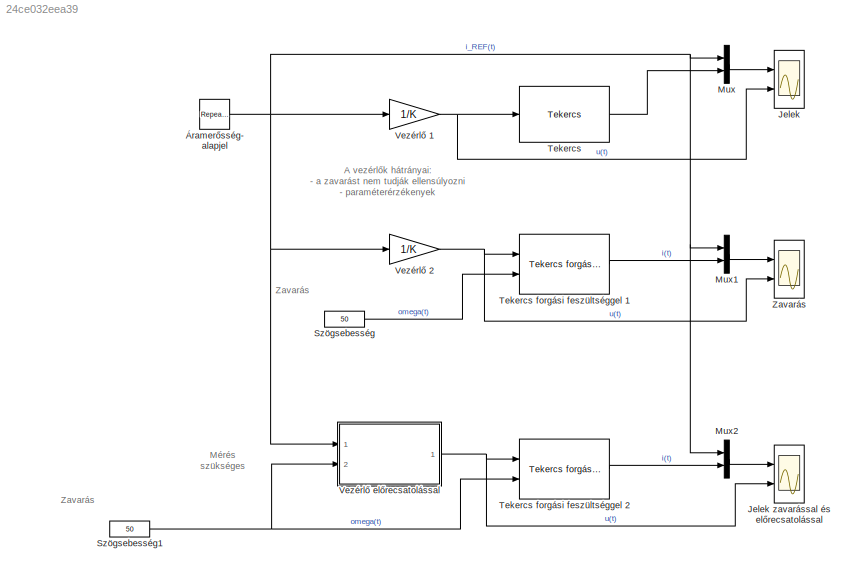
MODEL slx_24ce032eea39
KIND model
CONFIG InitFcn = % Modellparaméterek\nR = 250e-3;\nL = 10e-3;\nPsi_0 = 0.5e-3;\n\ni_0 = 0;\ntheta_0 = 0;\n\n% Rendszerparaméterek\nK = 1/R;\ntau = L/R;
BLOCK [Scope] Jelek
  DataFormat = StructureWithTime
  Floating = off
  LegendLocations = 0.86819     0.91854    0.099896    0.040359\n0.89213       0.463    0.075963    0.022795
  LimitDataPoints = off
  NumInputPorts = 2
  Ports = [2]
  SampleTime = 0
  ShowLegends = on
  YMax = 5~5
  YMin = -5~-5
BLOCK [Scope] Jelek zavarással és előrecsatolással
  DataFormat = StructureWithTime
  Floating = off
  LegendLocations = 0.86871     0.91797    0.099896    0.040359\n0.79067     0.46244    0.075963    0.022795
  LimitDataPoints = off
  NumInputPorts = 2
  Ports = [2]
  SampleTime = 0
  SaveName = ScopeData2
  ShowLegends = on
  YMax = 5~5
  YMin = -5~-5
BLOCK [Mux] Mux
  DisplayOption = bar
  Inputs = 2
  Ports = [2, 1]
BLOCK [Mux] Mux1
  DisplayOption = bar
  Inputs = 2
  Ports = [2, 1]
BLOCK [Mux] Mux2
  DisplayOption = bar
  Inputs = 2
  Ports = [2, 1]
BLOCK [Constant] Szögsebesség
  Value = 50
BLOCK [Constant] Szögsebesség1
  Value = 50
BLOCK [Reference] Tekercs  REF=RI_MK/Tekercs
  L = L
  Ports = [1, 1]
  R = R
  SourceBlock = RI_MK/Tekercs
  SourceType = Tekercs
  i_0 = 0
BLOCK [Reference] Tekercs forgási feszültséggel 1  REF=RI_MK/Tekercs forgási feszültséggel
  L = L
  Ports = [2, 1]
  Psi_0 = Psi_0
  R = R
  SourceBlock = RI_MK/Tekercs forgási feszültséggel
  SourceType = Tekercs forgási feszültséggel
  i_0 = i_0
  theta_0 = theta_0
BLOCK [Reference] Tekercs forgási feszültséggel 2  REF=RI_MK/Tekercs forgási feszültséggel
  L = L
  Ports = [2, 1]
  Psi_0 = Psi_0
  R = R
  SourceBlock = RI_MK/Tekercs forgási feszültséggel
  SourceType = Tekercs forgási feszültséggel
  i_0 = i_0
  theta_0 = theta_0
BLOCK [Gain] Vezérlő 1
  Gain = 1/K
  OutDataTypeStr = Inherit: Inherit via internal rule
  ParamDataTypeStr = Inherit: Inherit via internal rule
  SaturateOnIntegerOverflow = off
BLOCK [Gain] Vezérlő 2
  Gain = 1/K
  OutDataTypeStr = Inherit: Inherit via internal rule
  ParamDataTypeStr = Inherit: Inherit via internal rule
  SaturateOnIntegerOverflow = off
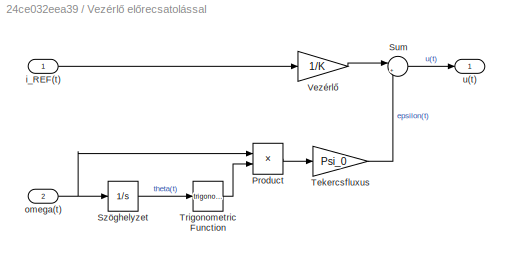
BLOCK [SubSystem] Vezérlő előrecsatolással
  FunctionWithSeparateData = off
  MaskHideContents = off
  MinAlgLoopOccurrences = off
  Opaque = off
  Ports = [2, 1]
  PropExecContextOutsideSubsystem = off
  RTWSystemCode = Auto
  RequestExecContextInheritance = off
BLOCK [Product] Vezérlő előrecsatolással/Product
  InputSameDT = off
  OutDataTypeStr = Inherit: Inherit via internal rule
  Ports = [2, 1]
  RndMeth = Floor
  SaturateOnIntegerOverflow = off
BLOCK [Sum] Vezérlő előrecsatolással/Sum
  IconShape = round
  InputSameDT = off
  Inputs = |+-
  OutDataTypeStr = Inherit: Inherit via internal rule
  Ports = [2, 1]
  SaturateOnIntegerOverflow = off
BLOCK [Integrator] Vezérlő előrecsatolással/Szöghelyzet
  InitialCondition = theta_0
  Ports = [1, 1]
BLOCK [Gain] Vezérlő előrecsatolással/Tekercsfluxus
  Gain = Psi_0
  OutDataTypeStr = Inherit: Inherit via internal rule
  ParamDataTypeStr = Inherit: Inherit via internal rule
  SaturateOnIntegerOverflow = off
BLOCK [Trigonometry] Vezérlő előrecsatolással/Trigonometric Function
  Ports = [1, 1]
BLOCK [Gain] Vezérlő előrecsatolással/Vezérlő
  Gain = 1/K
  OutDataTypeStr = Inherit: Inherit via internal rule
  ParamDataTypeStr = Inherit: Inherit via internal rule
  SaturateOnIntegerOverflow = off
BLOCK [Inport] Vezérlő előrecsatolással/i_REF(t)
  IconDisplay = Port number
BLOCK [Inport] Vezérlő előrecsatolással/omega(t)
  IconDisplay = Port number
  Port = 2
BLOCK [Outport] Vezérlő előrecsatolással/u(t)
  IconDisplay = Port number
BLOCK [Scope] Zavarás
  DataFormat = StructureWithTime
  Floating = off
  LegendLocations = 0.76986     0.91797     0.20812    0.040359\n0.89265     0.46244    0.075963    0.022795
  LimitDataPoints = off
  NumInputPorts = 2
  Ports = [2]
  SampleTime = 0
  SaveName = ScopeData1
  ShowLegends = on
  YMax = 5~5
  YMin = -5~-5
BLOCK [Reference] Áramerősség- alapjel  REF=simulink/Sources/Repeating
Sequence
Stair
  ConRadixGroup = Best Precision: Vector-wise
  LockScale = off
  OutDataType = fixdt(0,8)
  OutDataTypeStr = double
  OutMax = []
  OutMin = []
  OutScaling = 2^-12
  OutValues = [300, 100, -400, 200, -100]*1e-3
  OutputDataTypeScalingMode = double
  Ports = [0, 1]
  SourceBlock = simulink/Sources/Repeating\nSequence\nStair
  SourceType = Repeating Sequence Stair
  tsamp = L/R*5
ANNOTATION (root): A vezérlők hátrányai: - a zavarást nem tudják ellensúlyozni - paraméterérzékenyek
ANNOTATION (root): Mérés szükséges
ANNOTATION (root): Zavarás
LINE Mux1:1 -> Zavarás:1
LINE Mux2:1 -> Jelek zavarással és előrecsatolással:1
LINE Mux:1 -> Jelek:1
NET Szögsebesség1:1 -> Tekercs forgási feszültséggel 2:2, Vezérlő előrecsatolással:2
LINE Szögsebesség:1 -> Tekercs forgási feszültséggel 1:2
LINE Tekercs forgási feszültséggel 1:1 -> Mux1:2
LINE Tekercs forgási feszültséggel 2:1 -> Mux2:2
LINE Tekercs:1 -> Mux:2
NET Vezérlő 1:1 -> Jelek:2, Tekercs:1
NET Vezérlő 2:1 -> Tekercs forgási feszültséggel 1:1, Zavarás:2
LINE Vezérlő előrecsatolással/Product:1 -> Vezérlő előrecsatolással/Tekercsfluxus:1
LINE Vezérlő előrecsatolással/Sum:1 -> Vezérlő előrecsatolással/u(t):1
LINE Vezérlő előrecsatolással/Szöghelyzet:1 -> Vezérlő előrecsatolással/Trigonometric Function:1
LINE Vezérlő előrecsatolással/Tekercsfluxus:1 -> Vezérlő előrecsatolással/Sum:2
LINE Vezérlő előrecsatolással/Trigonometric Function:1 -> Vezérlő előrecsatolással/Product:2
LINE Vezérlő előrecsatolással/Vezérlő:1 -> Vezérlő előrecsatolással/Sum:1
LINE Vezérlő előrecsatolással/i_REF(t):1 -> Vezérlő előrecsatolással/Vezérlő:1
NET Vezérlő előrecsatolással/omega(t):1 -> Vezérlő előrecsatolással/Product:1, Vezérlő előrecsatolással/Szöghelyzet:1
NET Vezérlő előrecsatolással:1 -> Jelek zavarással és előrecsatolással:2, Tekercs forgási feszültséggel 2:1
NET Áramerősség- alapjel:1 -> Mux1:1, Mux2:1, Mux:1, Vezérlő 1:1, Vezérlő 2:1, Vezérlő előrecsatolással:1
note: NET lines group one-source signal fan-out (src -> all destinations, sorted); 1:1 wires keep LINE
